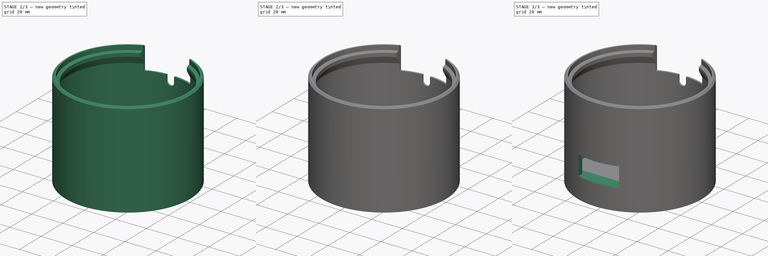
[diagram: build sequence overview — one tinted view per stage of 3, left to right]
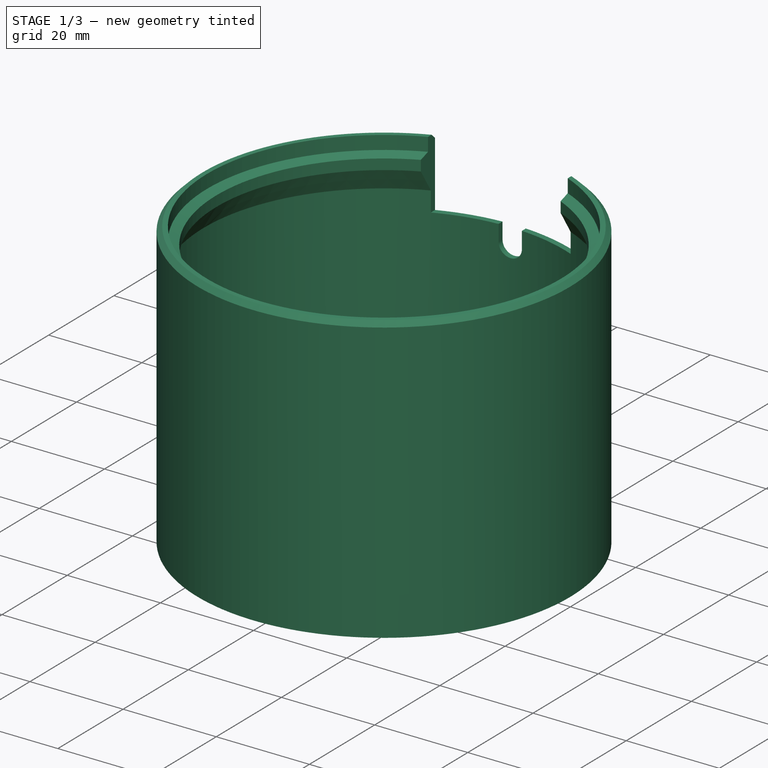
[diagram: stage 1 of 3 — iso view after this stage's code; geometry added in this stage tinted green]
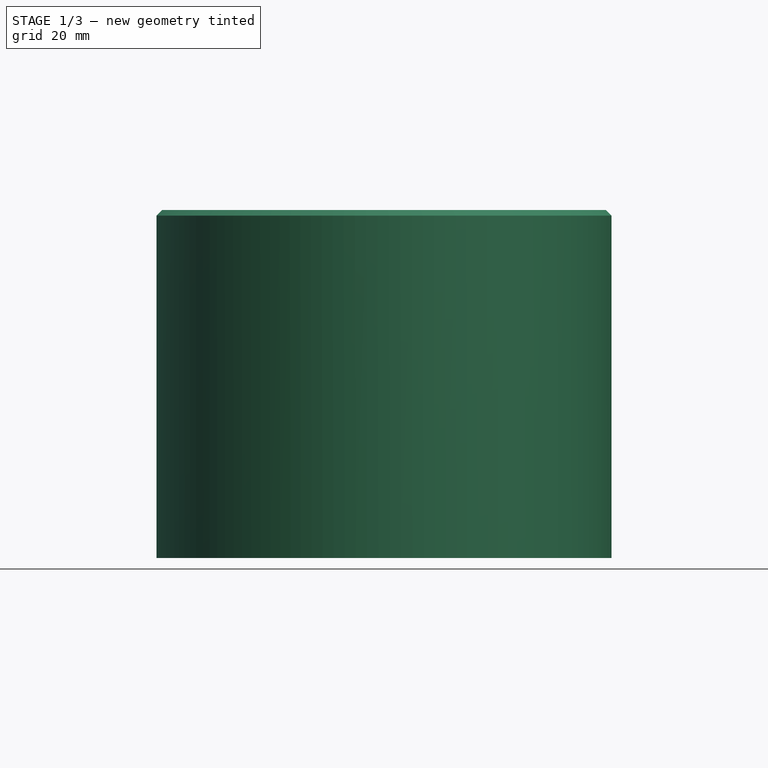
[diagram: stage 1 of 3 — front view after this stage's code; geometry added in this stage tinted green]
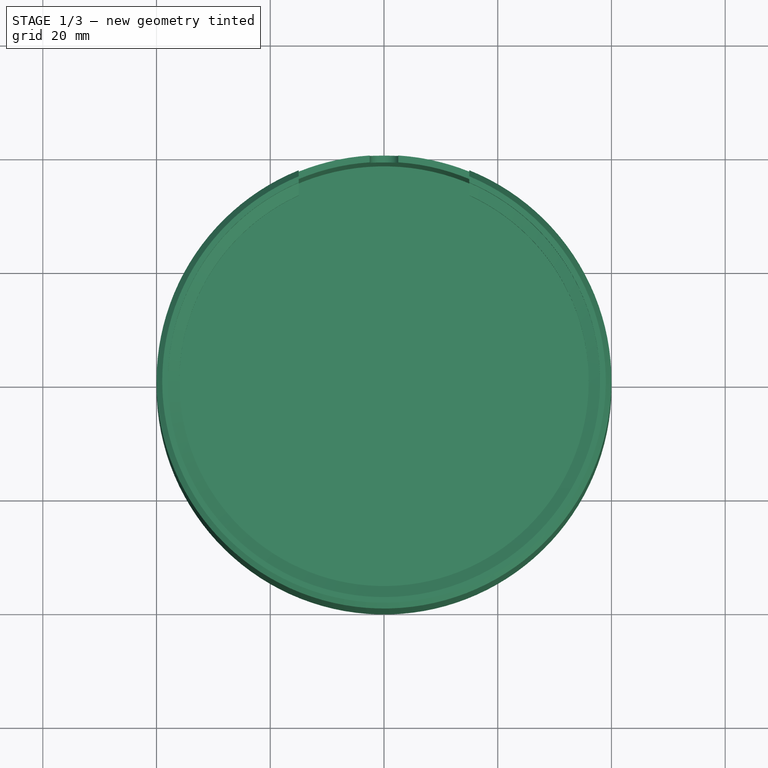
[diagram: stage 1 of 3 — top view after this stage's code; geometry added in this stage tinted green]
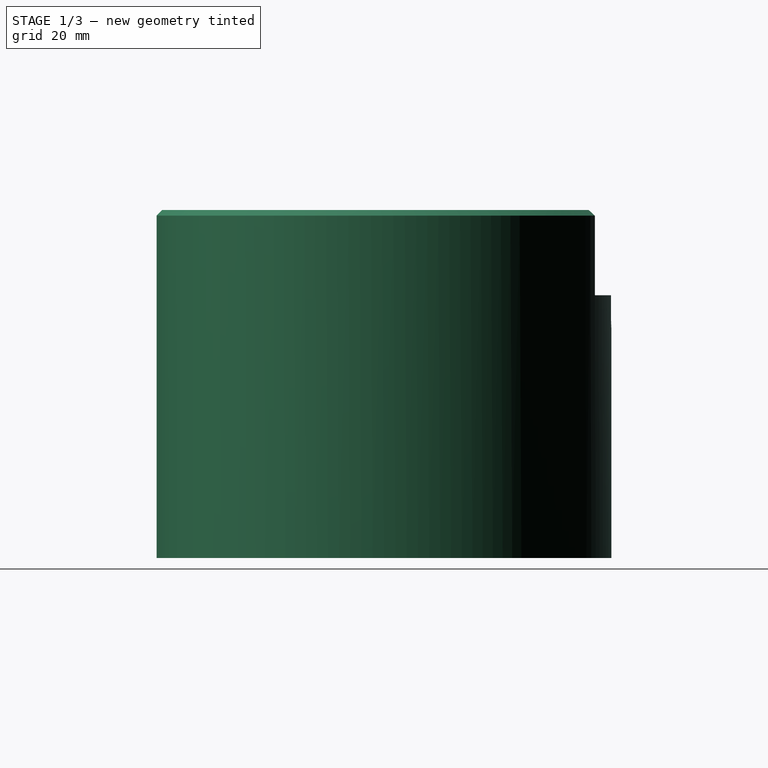
[diagram: stage 1 of 3 — right view after this stage's code; geometry added in this stage tinted green]
FCSTD DOCUMENT  (FreeCAD 0.20R29177 (Git))
Label: case
License: All rights reserved
LicenseURL: http://en.wikipedia.org/wiki/All_rights_reserved
objects: Sketcher::SketchObject×7, PartDesign::Pad×3, PartDesign::Pocket×3, PartDesign::Revolution×1, PartDesign::Chamfer×1, PartDesign::Body×1
note: 24 computed .brp shape members not serialized (recipe doc carries the construction recipe); baked Part::Feature solids carry a one-line shape summary decoded from their .brp

FEATURE [Sketcher::SketchObject] Sketch
  FullyConstrained = true
  MapMode = 5
  Support = -> [XY_Plane]
  sketch-geometry (1):
    g0: Circle CenterX=0 CenterY=0 CenterZ=0 NormalX=0 NormalY=0 NormalZ=1 AngleXU=0 Radius=40
  constraints (2):
    c: Coincident(g0,g-1)
    c: Diameter(g0) = 80
FEATURE [PartDesign::Pad] Pad
  Direction = (0,0,1)
  Length = 1.2
  Length2 = 10
  Profile = -> Sketch
  ReferenceAxis = -> Sketch [N_Axis]
  Type = 0
FEATURE [Sketcher::SketchObject] Sketch001
  ExternalGeometry = -> [Pad]
  FullyConstrained = true
  MapMode = 5
  Placement = pos=(0,0,0) rot=(1,0,0;1.5708rad)
  Support = -> [XZ_Plane]
  sketch-geometry (9):
    g0: LineSegment StartX=-40 StartY=1.2 StartZ=0 EndX=-40 EndY=60.2 EndZ=0
    g1: LineSegment StartX=-40 StartY=60.2 StartZ=0 EndX=-39 EndY=61.2 EndZ=0
    g2: LineSegment StartX=-39 StartY=61.2 StartZ=0 EndX=-38 EndY=61.2 EndZ=0
    g3: LineSegment StartX=-38 StartY=61.2 StartZ=0 EndX=-38 EndY=58.3 EndZ=0
    g4: LineSegment StartX=-38 StartY=58.3 StartZ=0 EndX=-36 EndY=57.5721 EndZ=0
    g5: LineSegment StartX=-36 StartY=57.5721 StartZ=0 EndX=-36 EndY=55.3221 EndZ=0
    g6: LineSegment StartX=-36 StartY=55.3221 StartZ=0 EndX=-38.8 EndY=50.4723 EndZ=0
    g7: LineSegment StartX=-38.8 StartY=50.4723 StartZ=0 EndX=-38.8 EndY=1.2 EndZ=0
    g8: LineSegment StartX=-38.8 StartY=1.2 StartZ=0 EndX=-40 EndY=1.2 EndZ=0
  constraints (26):
    c: Coincident(g0,g-3)
    c: Vertical(g0)
    c: Coincident(g1,g0)
    c: Coincident(g2,g1)
    c: Horizontal(g2)
    c: Coincident(g3,g2)
    c: Vertical(g3)
    c: Coincident(g4,g3)
    c: Coincident(g5,g4)
    c: Vertical(g5)
    c: Coincident(g6,g5)
    c: Coincident(g7,g6)
    c: PointOnObject(g7,g-3)
    c: Vertical(g7)
    c: Coincident(g8,g7)
    c: Coincident(g8,g0)
    c: Distance(g0,g7) = 1.2
    c: DistanceY(g3,g3) = 2.9
    c: Angle(g4,g3) = 1.91986
    c: DistanceY(g5,g5) = 2.25
    c: DistanceX(g0,g4) = 4
    c: DistanceX(g0,g2) = 2
    c: Angle(g0,g1) = 2.35619
    c: DistanceX(g0,g1) = 1
    c: Angle(g7,g6) = 2.61799
    c: DistanceY(g0,g1) = 60
FEATURE [PartDesign::Revolution] Revolution
  Angle = 360
  Axis = (0,2e-16,1)
  Base = (0,0,0)
  BaseFeature = -> Pad
  Profile = -> Sketch001
  ReferenceAxis = -> Sketch001 [V_Axis]
FEATURE [Sketcher::SketchObject] Sketch002
  ExternalGeometry = -> [Revolution]
  FullyConstrained = true
  MapMode = 5
  Placement = pos=(0,0,0) rot=(1,0,0;1.5708rad)
  Support = -> [XZ_Plane]
  sketch-geometry (8):
    g0: LineSegment StartX=-15 StartY=61.2 StartZ=0 EndX=15 EndY=61.2 EndZ=0
    g1: LineSegment StartX=15 StartY=61.2 StartZ=0 EndX=15 EndY=46.2 EndZ=0
    g2: LineSegment StartX=15 StartY=46.2 StartZ=0 EndX=2.5 EndY=46.2 EndZ=0
    g3: LineSegment StartX=-15 StartY=46.2 StartZ=0 EndX=-15 EndY=61.2 EndZ=0
    g4: LineSegment StartX=-2.5 StartY=46.2 StartZ=0 EndX=-2.5 EndY=42.7 EndZ=0
    g5: LineSegment StartX=2.5 StartY=46.2 StartZ=0 EndX=2.5 EndY=42.7 EndZ=0
    g6: ArcOfCircle CenterX=0 CenterY=42.7 CenterZ=0 NormalX=0 NormalY=0 NormalZ=1 AngleXU=0 Radius=2.5 StartAngle=3.14159 EndAngle=6.28319
    g7: LineSegment StartX=-2.5 StartY=46.2 StartZ=0 EndX=-15 EndY=46.2 EndZ=0
  constraints (24):
    c: Coincident(g0,g1)
    c: Coincident(g1,g2)
    c: Coincident(g7,g3)
    c: Coincident(g3,g0)
    c: Horizontal(g2)
    c: Vertical(g1)
    c: Vertical(g3)
    c: PointOnObject(g0,g-3)
    c: Symmetric(g0,g0,g-2)
    c: Vertical(g4)
    c: Vertical(g5)
    c: PointOnObject(g6,g-2)
    c: Coincident(g6,g4)
    c: Coincident(g6,g5)
    c: Horizontal(g4,g6)
    c: Horizontal(g6,g5)
    c: DistanceY(g6,g0) = 18.5
    c: Diameter(g6) = 5
    c: Coincident(g2,g5)
    c: Coincident(g7,g4)
    c: Horizontal(g2,g4)
    c: DistanceY(g6,g2) = 3.5
    c: Horizontal(g7)
    c: DistanceX(g0,g0) = 30
FEATURE [PartDesign::Pocket] Pocket
  BaseFeature = -> Revolution
  Direction = (0,1,-2e-16)
  Length = 5
  Length2 = 5
  Profile = -> Sketch002
  ReferenceAxis = -> Sketch002 [N_Axis]
  Type = 1
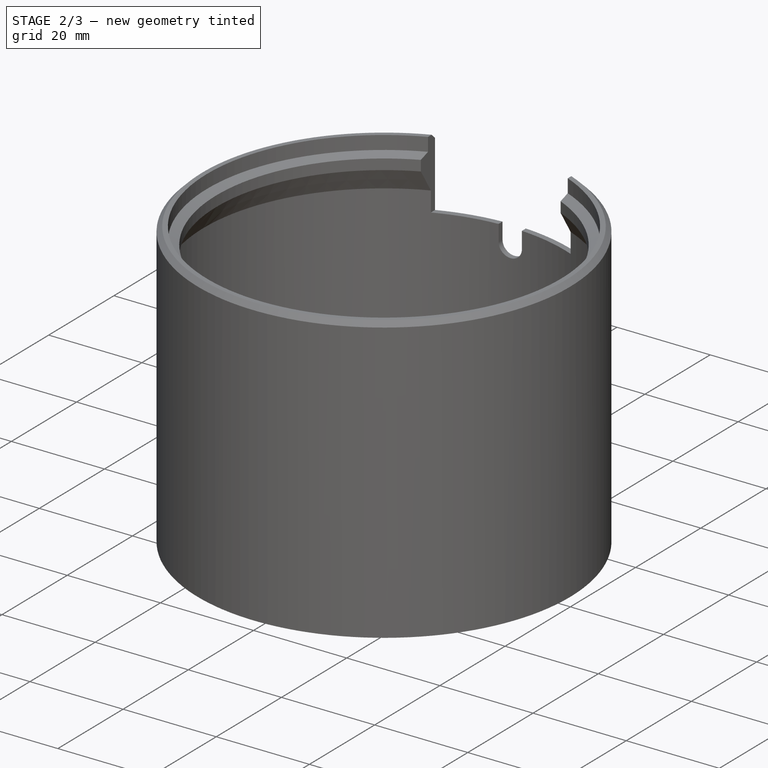
[diagram: stage 2 of 3 — iso view after this stage's code; geometry added in this stage tinted green]
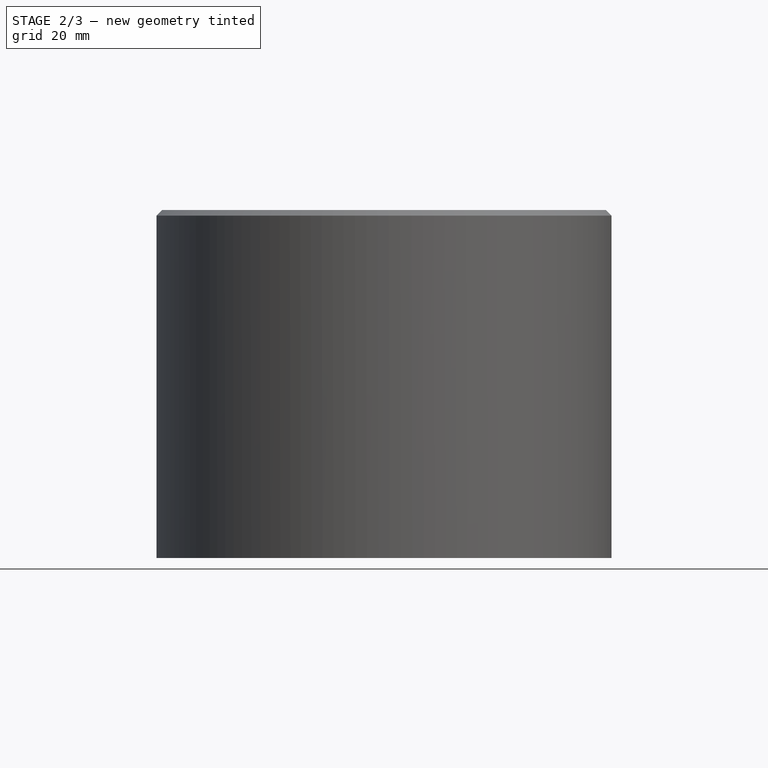
[diagram: stage 2 of 3 — front view after this stage's code; geometry added in this stage tinted green]
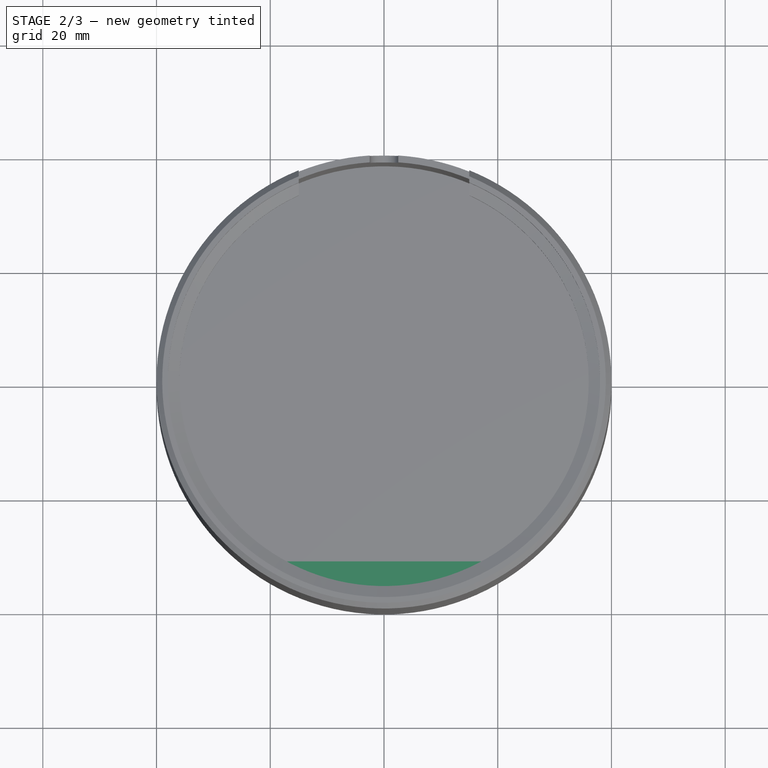
[diagram: stage 2 of 3 — top view after this stage's code; geometry added in this stage tinted green]
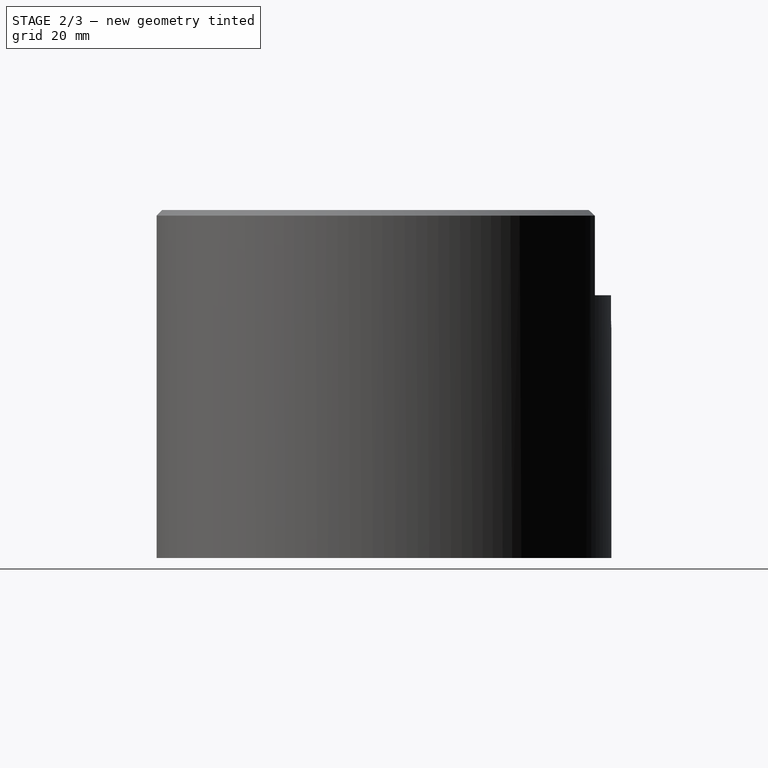
[diagram: stage 2 of 3 — right view after this stage's code; geometry added in this stage tinted green]
FEATURE [Sketcher::SketchObject] Sketch003
  FullyConstrained = true
  MapMode = 5
  Placement = pos=(0,0,0) rot=(1,0,0;1.5708rad)
  Support = -> [XZ_Plane]
  sketch-geometry (4):
    g0: LineSegment StartX=13 StartY=26.2 StartZ=0 EndX=-13 EndY=26.2 EndZ=0
    g1: LineSegment StartX=-13 StartY=26.2 StartZ=0 EndX=-13 EndY=13.7 EndZ=0
    g2: LineSegment StartX=-13 StartY=13.7 StartZ=0 EndX=13 EndY=13.7 EndZ=0
    g3: LineSegment StartX=13 StartY=13.7 StartZ=0 EndX=13 EndY=26.2 EndZ=0
  constraints (11):
    c: Coincident(g0,g1)
    c: Coincident(g1,g2)
    c: Coincident(g2,g3)
    c: Coincident(g3,g0)
    c: Horizontal(g2)
    c: Vertical(g1)
    c: Vertical(g3)
    c: Distance(g1,g-1) = 13.7
    c: Distance(g3) = 12.5
    c: Distance(g0) = 26
    c: Symmetric(g0,g0,g-2)
FEATURE [Sketcher::SketchObject] Sketch004
  ExternalGeometry = -> [Pocket]
  FullyConstrained = true
  MapMode = 5
  Placement = pos=(0,0,1.2) rot=(0,0,1;0rad)
  Support = -> [Pocket]
  sketch-geometry (5):
    g0: ArcOfCircle CenterX=0 CenterY=3e-16 CenterZ=0 NormalX=0 NormalY=0 NormalZ=1 AngleXU=0 Radius=38.8 StartAngle=4.07479 EndAngle=5.34999
    g1: ArcOfCircle CenterX=0 CenterY=3e-16 CenterZ=0 NormalX=0 NormalY=0 NormalZ=1 AngleXU=0 Radius=36 StartAngle=4.18879 EndAngle=5.23599
    g2: LineSegment StartX=-23.0963 StartY=-31.1769 StartZ=0 EndX=-18 EndY=-31.1769 EndZ=0
    g3: LineSegment StartX=18 StartY=-31.1769 StartZ=0 EndX=23.0963 EndY=-31.1769 EndZ=0
    g4: LineSegment StartX=18 StartY=-31.1769 StartZ=0 EndX=19.4 EndY=-33.6018 EndZ=0
  constraints (16):
    c: Coincident(g0,g-3)
    c: PointOnObject(g0,g-3)
    c: Horizontal(g0,g0)
    c: Coincident(g1,g0)
    c: Horizontal(g0,g1)
    c: Horizontal(g1,g0)
    c: Coincident(g2,g0)
    c: PointOnObject(g2,g1)
    c: Horizontal(g2)
    c: Coincident(g3,g1)
    c: Coincident(g3,g0)
    c: Coincident(g4,g1)
    c: PointOnObject(g4,g0)
    c: PointOnObject(g0,g4)
    c: Distance(g4) = 2.8
    c: Distance(g1,g1) = 36
FEATURE [PartDesign::Pad] Pad001
  AlongSketchNormal = false
  BaseFeature = -> Pocket
  Direction = (0,0,1)
  Length = 55
  Length2 = 10
  Profile = -> Sketch004
  ReferenceAxis = -> Sketch004 [N_Axis]
  Type = 3
  UpToFace = -> Pocket [Face17]
FEATURE [Sketcher::SketchObject] Sketch005
  ExternalGeometry = -> [Pad001]
  FullyConstrained = true
  MapMode = 5
  Placement = pos=(0,-31.1769,0) rot=(0,0.707107,0.707107;3.14159rad)
  Support = -> [Pad001]
  sketch-geometry (4):
    g0: LineSegment StartX=18 StartY=10.7 StartZ=0 EndX=-18 EndY=10.7 EndZ=0
    g1: LineSegment StartX=-18 StartY=10.7 StartZ=0 EndX=-18 EndY=29.2 EndZ=0
    g2: LineSegment StartX=-18 StartY=29.2 StartZ=0 EndX=18 EndY=29.2 EndZ=0
    g3: LineSegment StartX=18 StartY=29.2 StartZ=0 EndX=18 EndY=10.7 EndZ=0
  constraints (12):
    c: Coincident(g0,g1)
    c: Coincident(g1,g2)
    c: Coincident(g2,g3)
    c: Coincident(g3,g0)
    c: Horizontal(g0)
    c: Horizontal(g2)
    c: Vertical(g1)
    c: Vertical(g3)
    c: PointOnObject(g0,g-3)
    c: PointOnObject(g1,g-4)
    c: DistanceY(g3,g3) = 18.5
    c: Distance(g2,g-1) = 29.2
FEATURE [PartDesign::Pad] Pad002
  BaseFeature = -> Pad001
  Direction = (0,1,-2e-16)
  Length = 10
  Length2 = 10
  Profile = -> Sketch005
  ReferenceAxis = -> Sketch005 [N_Axis]
  Reversed = true
  Type = 1
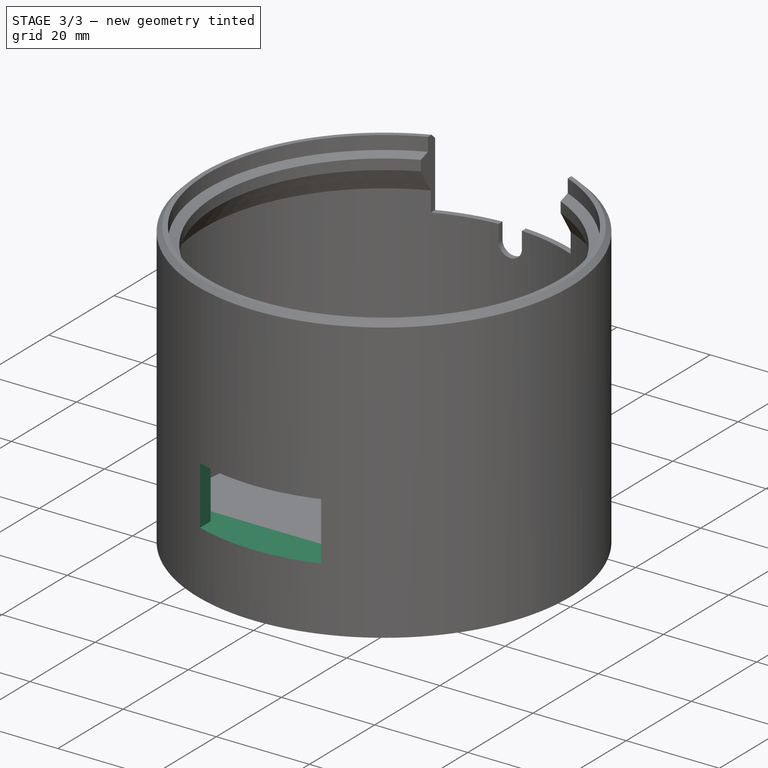
[diagram: stage 3 of 3 — iso view after this stage's code; geometry added in this stage tinted green]
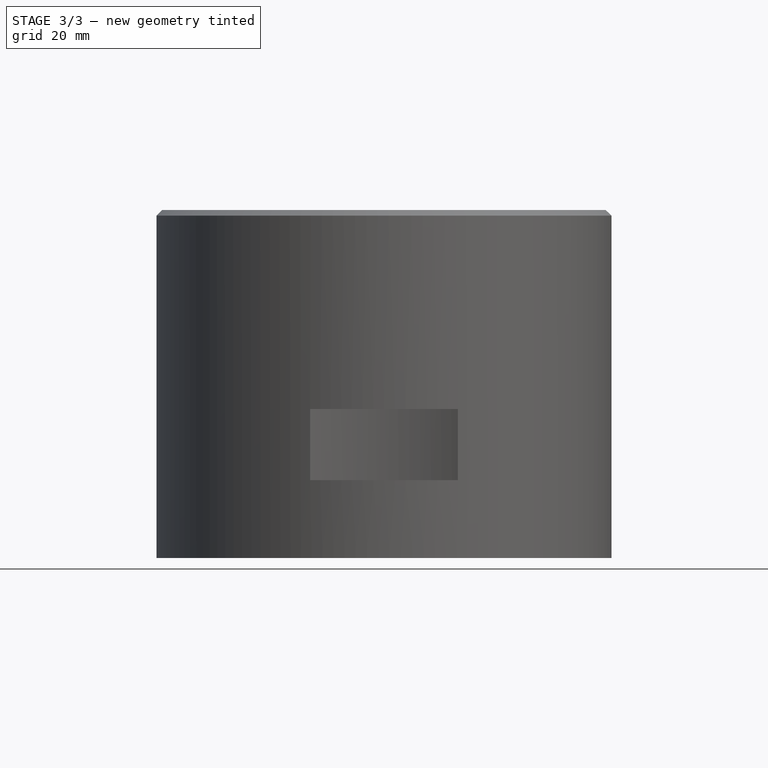
[diagram: stage 3 of 3 — front view after this stage's code; geometry added in this stage tinted green]
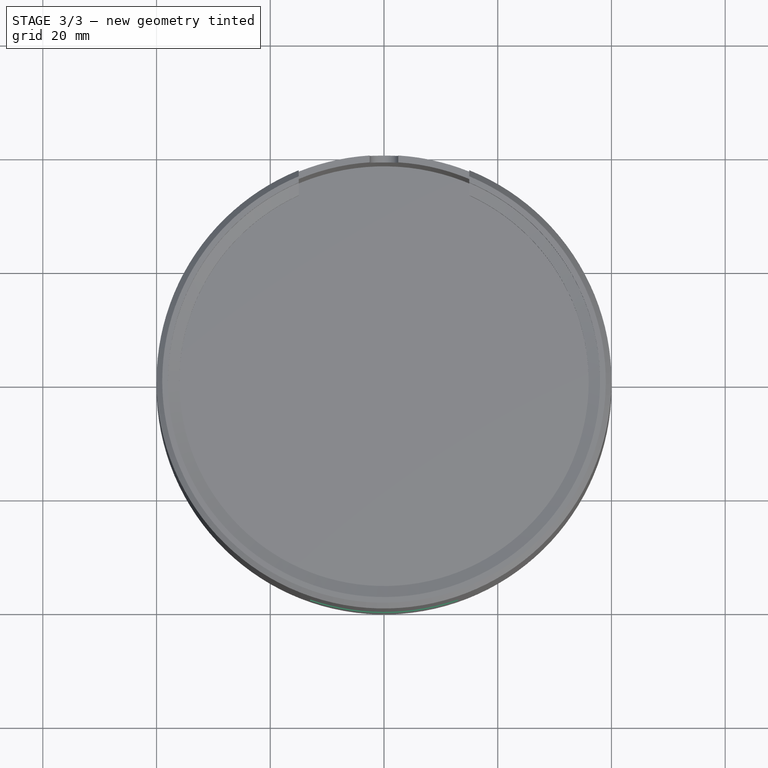
[diagram: stage 3 of 3 — top view after this stage's code; geometry added in this stage tinted green]
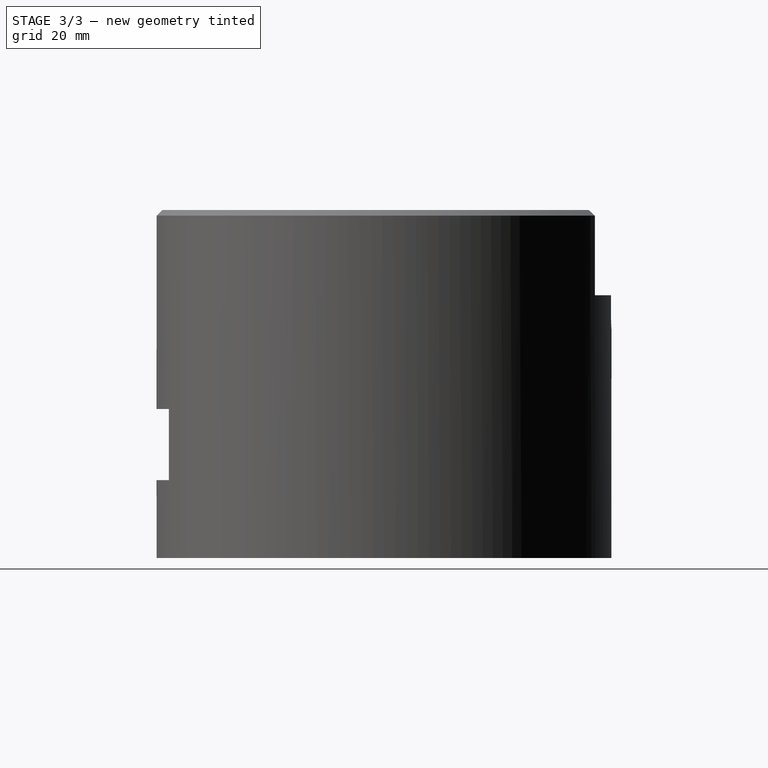
[diagram: stage 3 of 3 — right view after this stage's code; geometry added in this stage tinted green]
FEATURE [PartDesign::Pocket] Pocket001
  BaseFeature = -> Pad002
  Direction = (0,1,-2e-16)
  Length = 5
  Length2 = 5
  Profile = -> Sketch003
  ReferenceAxis = -> Sketch003 [N_Axis]
  Reversed = true
  Type = 1
FEATURE [Sketcher::SketchObject] Sketch006
  ExternalGeometry = -> [Pocket001]
  FullyConstrained = true
  MapMode = 5
  Placement = pos=(0,-31.1769,6e-15) rot=(0,0.707107,0.707107;3.14159rad)
  Support = -> [Pocket001]
  sketch-geometry (4):
    g0: LineSegment StartX=20.5 StartY=13.7 StartZ=0 EndX=-18.25 EndY=13.7 EndZ=0
    g1: LineSegment StartX=-18.25 StartY=13.7 StartZ=0 EndX=-18.25 EndY=26.2 EndZ=0
    g2: LineSegment StartX=-18.25 StartY=26.2 StartZ=0 EndX=20.5 EndY=26.2 EndZ=0
    g3: LineSegment StartX=20.5 StartY=26.2 StartZ=0 EndX=20.5 EndY=13.7 EndZ=0
  constraints (12):
    c: Coincident(g0,g1)
    c: Coincident(g1,g2)
    c: Coincident(g2,g3)
    c: Coincident(g3,g0)
    c: Horizontal(g0)
    c: Horizontal(g2)
    c: Vertical(g1)
    c: Vertical(g3)
    c: DistanceX(g-3,g0) = 7.5
    c: Distance(g2) = 38.75
    c: PointOnObject(g-3,g0)
    c: PointOnObject(g-3,g2)
FEATURE [PartDesign::Pocket] Pocket002
  BaseFeature = -> Pocket001
  Direction = (0,-1,2e-16)
  Length = 2.4
  Length2 = 5
  Profile = -> Sketch006
  ReferenceAxis = -> Sketch006 [N_Axis]
  Type = 0
FEATURE [PartDesign::Chamfer] Chamfer
  Angle = 45
  Base = -> Pocket002 [Edge47]
  BaseFeature = -> Pocket002
  ChamferType = 1
  FlipDirection = false
  Size = 1
  Size2 = 2
  SupportTransform = false
  UseAllEdges = false
FEATURE [PartDesign::Body] Body
  Group = -> [Sketch,Pad,Sketch001,Revolution,Sketch002,Pocket,Sketch004,Pad001,Sketch005,Pad002,Sketch003,Pocket001,Sketch006,Pocket002,Chamfer]
  Origin = -> Origin
  Tip = -> Chamfer
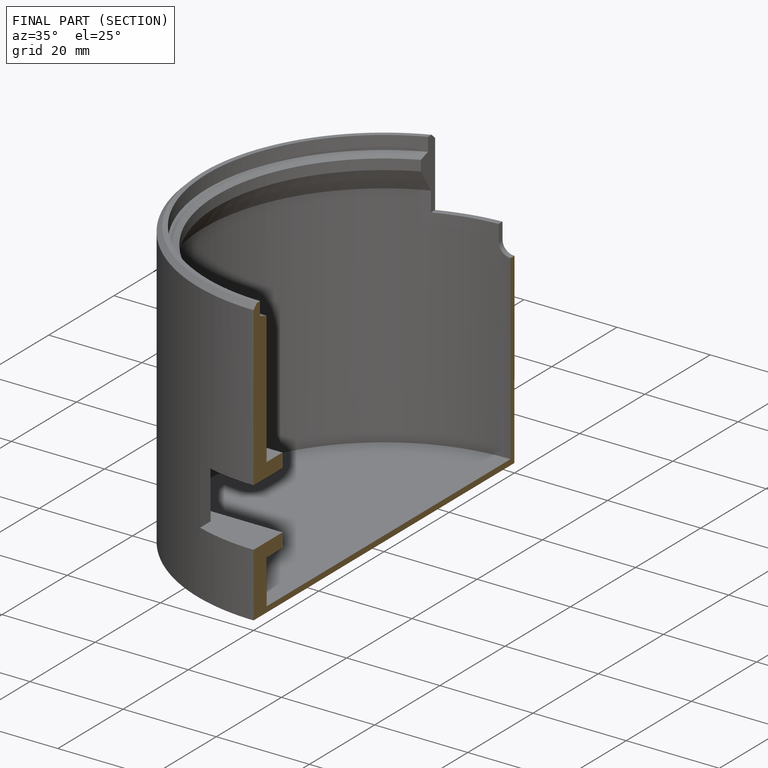
[diagram: finished part — half-section view (interior)]
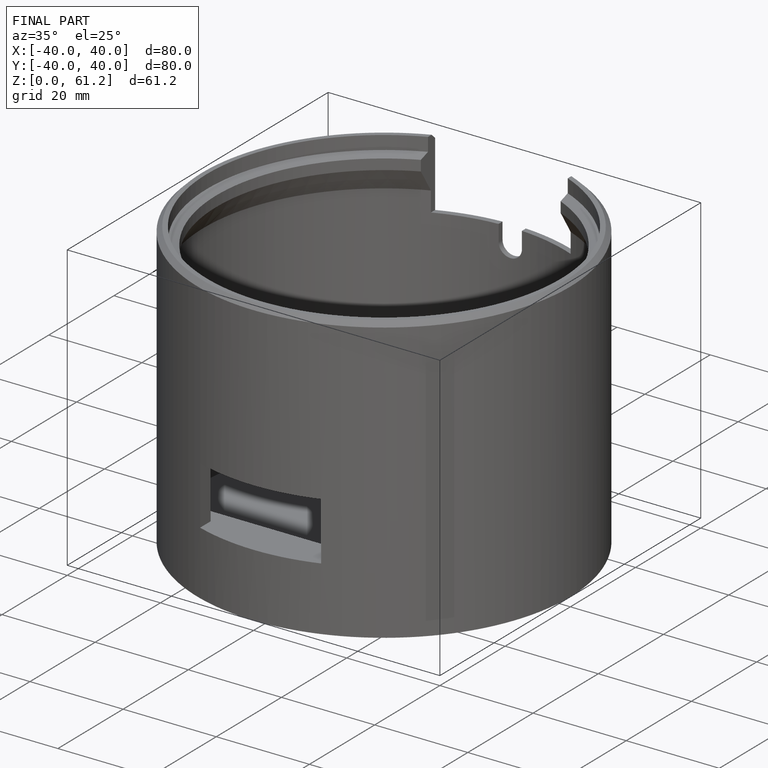
[diagram: finished part — iso view with bounding-box wireframe]
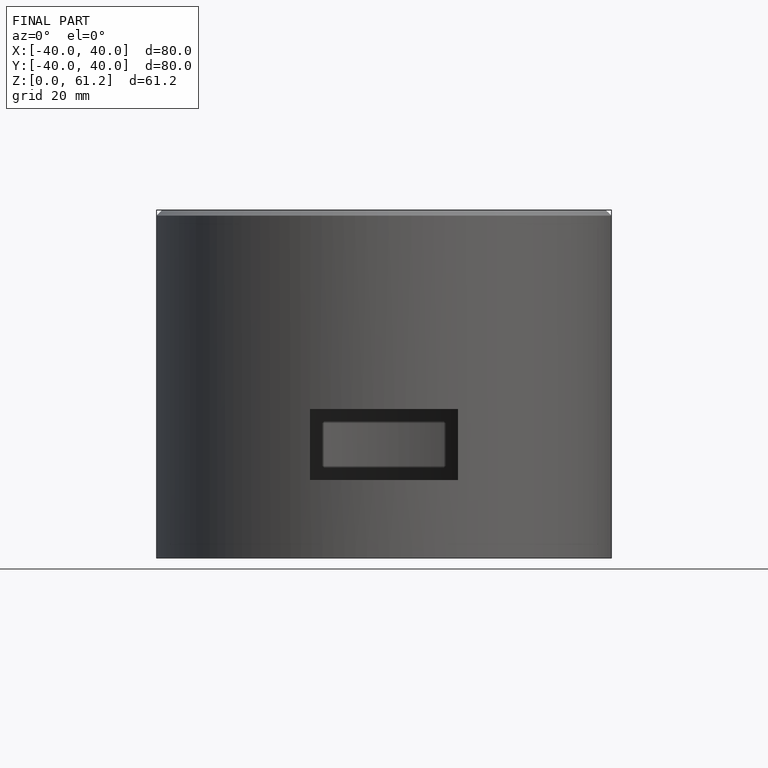
[diagram: finished part — front view with bounding-box wireframe]
